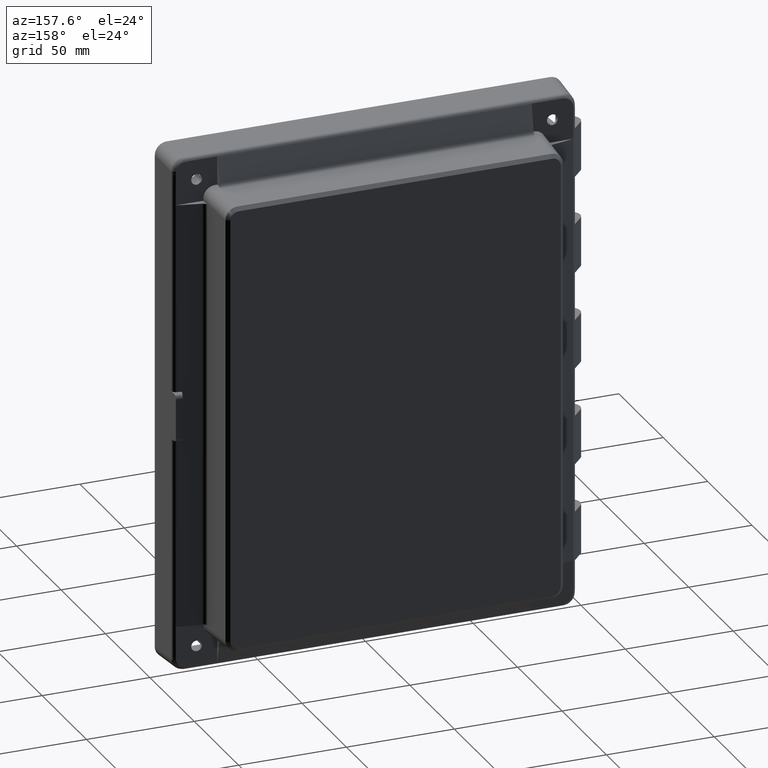
[diagram: clean part render]
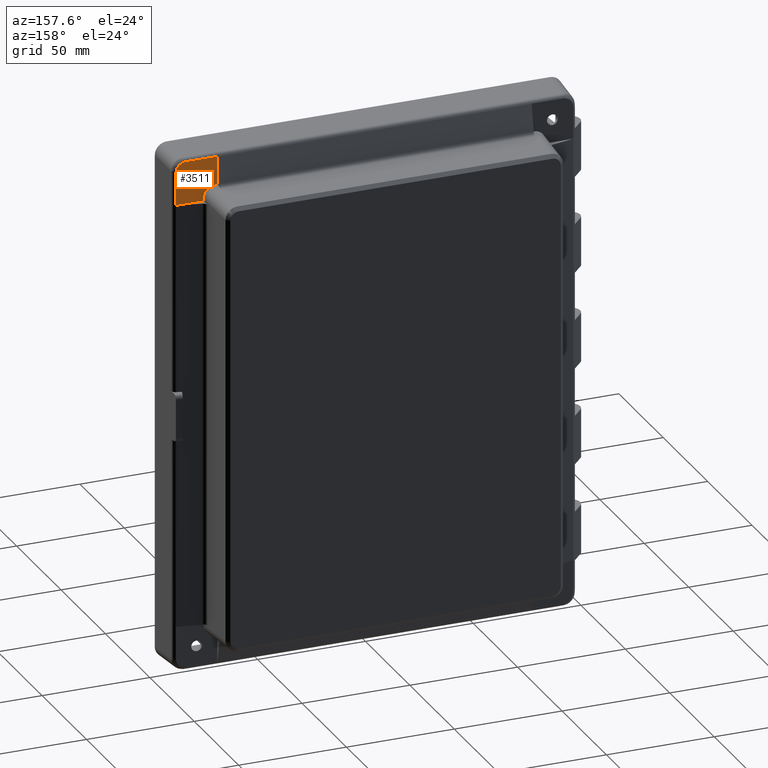
[diagram: same view with one face highlighted and labeled with its STEP entity id]
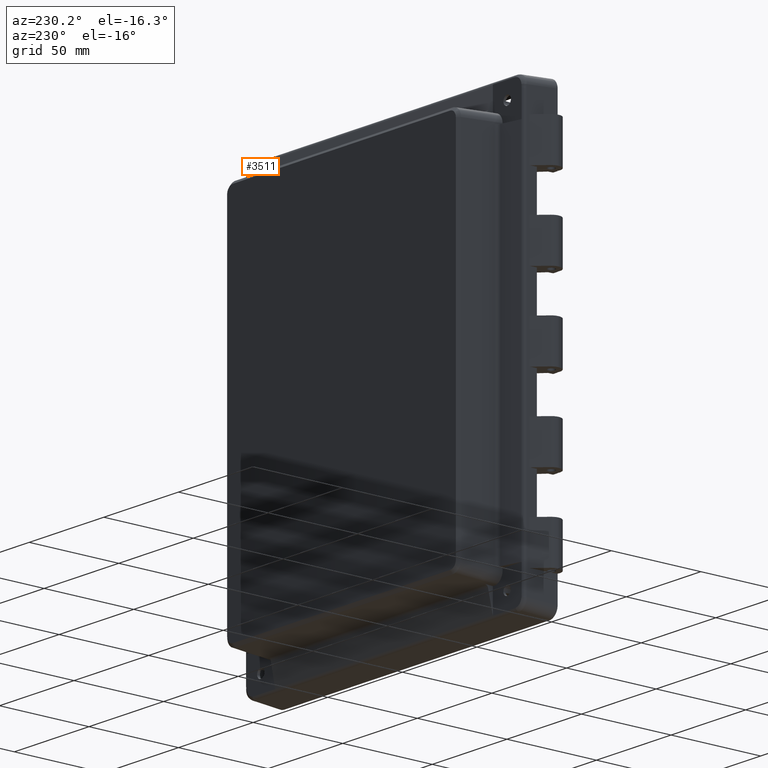
[diagram: same view with one face highlighted and labeled with its STEP entity id]
A machine part, auxiliary view. The second image highlights one B-rep face of the part: STEP entity #3511.
A second angle (auxiliary view) of the same face is appended — the face is thin or edge-on in the first view.
In plain terms, the highlighted planar face has unit normal (0, 1, 0).
Its self-contained STEP definition (entity closure, byte-faithful):
#19 = AXIS2_PLACEMENT_3D ( 'NONE', #389, #6987, #5044 ) ;
#147 = CARTESIAN_POINT ( 'NONE',  ( 91.17792925753433100, 10.26305314132456400, 116.9575850002400000 ) ) ;
#189 = CARTESIAN_POINT ( 'NONE',  ( 90.65763125663389100, 10.26305314132456400, 117.5129712022729600 ) ) ;
#200 = AXIS2_PLACEMENT_3D ( 'NONE', #6216, #6789, #6873 ) ;
#226 = ORIENTED_EDGE ( 'NONE', *, *, #573, .F. ) ;
#239 = CARTESIAN_POINT ( 'NONE',  ( 90.46072903492050400, 10.26305314132456600, 117.6754829822426700 ) ) ;
#255 = ORIENTED_EDGE ( 'NONE', *, *, #3357, .F. ) ;
#270 = EDGE_LOOP ( 'NONE', ( #4478, #3212, #226, #5603, #4025, #4510, #4440, #8291, #6733, #2239 ) ) ;
#389 = CARTESIAN_POINT ( 'NONE',  ( 80.77759780067911800, 10.26305314132456700, 108.1551621632934400 ) ) ;
#444 = EDGE_CURVE ( 'NONE', #7167, #2743, #2671, .T. ) ;
#460 = ORIENTED_EDGE ( 'NONE', *, *, #3816, .F. ) ;
#487 = CIRCLE ( 'NONE', #929, 0.2999999999999947200 ) ;
#508 = VERTEX_POINT ( 'NONE', #6700 ) ;
#573 = EDGE_CURVE ( 'NONE', #2435, #8001, #1056, .T. ) ;
#577 = FACE_BOUND ( 'NONE', #1226, .T. ) ;
#620 = AXIS2_PLACEMENT_3D ( 'NONE', #3177, #3852, #5871 ) ;
#878 = ORIENTED_EDGE ( 'NONE', *, *, #5359, .F. ) ;
#895 = CIRCLE ( 'NONE', #19, 0.2999999999999808400 ) ;
#911 = CARTESIAN_POINT ( 'NONE',  ( 90.04408250934285700, 10.26305314132456600, 117.9597556672970300 ) ) ;
#929 = AXIS2_PLACEMENT_3D ( 'NONE', #3565, #6242, #7442 ) ;
#946 = CARTESIAN_POINT ( 'NONE',  ( 92.18264067045092200, 10.26305314132456700, 98.93475897172263000 ) ) ;
#1056 = B_SPLINE_CURVE_WITH_KNOTS ( 'NONE', 3,
 ( #5440, #7428, #3485, #5501 ),
 .UNSPECIFIED., .F., .F.,
 ( 4, 4 ),
 ( 0.0000000000000000000, 0.001667450946668626700 ),
 .UNSPECIFIED. ) ;
#1200 = VECTOR ( 'NONE', #7460, 1000.000000000000000 ) ;
#1226 = EDGE_LOOP ( 'NONE', ( #878, #460, #2879, #1821, #4925, #255 ) ) ;
#1237 = VERTEX_POINT ( 'NONE', #1594 ) ;
#1406 = EDGE_CURVE ( 'NONE', #8270, #3006, #6795, .T. ) ;
#1416 = CIRCLE ( 'NONE', #620, 2.499999999999988500 ) ;
#1454 = CARTESIAN_POINT ( 'NONE',  ( 92.02752371964803000, 10.26305314132456900, 115.1362635281114300 ) ) ;
#1504 = CARTESIAN_POINT ( 'NONE',  ( 72.93475897172264400, 10.26305314132456700, 122.0847589717226200 ) ) ;
#1541 = CARTESIAN_POINT ( 'NONE',  ( 81.76090246257229000, 10.26305314132456700, 107.1170593762610500 ) ) ;
#1594 = CARTESIAN_POINT ( 'NONE',  ( 82.51926223426441700, 10.26305314132456700, 111.9992622342643200 ) ) ;
#1647 = DIRECTION ( 'NONE',  ( 4.022878491908001800E-014, -0.0000000000000000000, 1.000000000000000000 ) ) ;
#1717 = CARTESIAN_POINT ( 'NONE',  ( 87.57709328281251300, 10.26305314132456700, 118.6572041438203400 ) ) ;
#1821 = ORIENTED_EDGE ( 'NONE', *, *, #3232, .F. ) ;
#1973 = AXIS2_PLACEMENT_3D ( 'NONE', #4792, #2665, #5355 ) ;
#1989 = CARTESIAN_POINT ( 'NONE',  ( 73.96967373504921300, 10.26305314132456700, 99.96967373504912800 ) ) ;
#2047 = CARTESIAN_POINT ( 'NONE',  ( 80.54009810519018200, 10.26305314132456700, 107.9718757899792800 ) ) ;
#2112 = EDGE_CURVE ( 'NONE', #8001, #508, #3634, .T. ) ;
#2129 = VERTEX_POINT ( 'NONE', #2047 ) ;
#2191 = EDGE_CURVE ( 'NONE', #4637, #3006, #4916, .T. ) ;
#2239 = ORIENTED_EDGE ( 'NONE', *, *, #1406, .F. ) ;
#2256 = CARTESIAN_POINT ( 'NONE',  ( 89.82265645280091300, 10.26305314132456600, 118.0830192297788100 ) ) ;
#2343 = CARTESIAN_POINT ( 'NONE',  ( 79.46213617619940800, 10.26305314132456700, 99.96967373504919900 ) ) ;
#2435 = VERTEX_POINT ( 'NONE', #7857 ) ;
#2520 = DIRECTION ( 'NONE',  ( 0.0000000000000000000, 0.0000000000000000000, 1.000000000000000000 ) ) ;
#2614 = CARTESIAN_POINT ( 'NONE',  ( 72.93475897172264400, 10.26305314132456700, 118.6826406704508200 ) ) ;
#2665 = DIRECTION ( 'NONE',  ( -0.0000000000000000000, -1.000000000000000000, -0.0000000000000000000 ) ) ;
#2671 = CIRCLE ( 'NONE', #1973, 5.492462441150189000 ) ;
#2743 = VERTEX_POINT ( 'NONE', #5614 ) ;
#2849 = AXIS2_PLACEMENT_3D ( 'NONE', #1989, #4611, #5314 ) ;
#2879 = ORIENTED_EDGE ( 'NONE', *, *, #5617, .F. ) ;
#2952 = EDGE_CURVE ( 'NONE', #4091, #8237, #3717, .T. ) ;
#3006 = VERTEX_POINT ( 'NONE', #2614 ) ;
#3177 = CARTESIAN_POINT ( 'NONE',  ( 82.51926223426441700, 10.26305314132456700, 109.4992622342643400 ) ) ;
#3204 = EDGE_CURVE ( 'NONE', #4091, #2435, #7107, .T. ) ;
#3212 = ORIENTED_EDGE ( 'NONE', *, *, #2112, .F. ) ;
#3232 = EDGE_CURVE ( 'NONE', #2129, #1237, #3619, .T. ) ;
#3355 = CARTESIAN_POINT ( 'NONE',  ( 92.08950946164000600, 10.26305314132456600, 114.6299924083981200 ) ) ;
#3357 = EDGE_CURVE ( 'NONE', #5938, #7318, #7022, .T. ) ;
#3467 = CARTESIAN_POINT ( 'NONE',  ( 91.89798329728466800, 10.26305314132456700, 115.6221673674419500 ) ) ;
#3485 = CARTESIAN_POINT ( 'NONE',  ( 92.15720414382045100, 10.26305314132456700, 114.0770932828124000 ) ) ;
#3495 = FACE_OUTER_BOUND ( 'NONE', #270, .T. ) ;
#3511 = ADVANCED_FACE ( 'NONE', ( #577, #3495 ), #6662, .T. ) ;
#3565 = CARTESIAN_POINT ( 'NONE',  ( 81.85190563517538500, 10.26305314132456700, 107.4029237192214200 ) ) ;
#3599 = CARTESIAN_POINT ( 'NONE',  ( 72.93475897172264400, 10.26305314132456700, 105.4621361761993400 ) ) ;
#3619 = CIRCLE ( 'NONE', #200, 2.499999999999988500 ) ;
#3634 = B_SPLINE_CURVE_WITH_KNOTS ( 'NONE', 3,
 ( #7372, #1454, #3467, #8069, #4144, #147, #4034, #189, #239, #911, #2256, #6834, #6194, #8090 ),
 .UNSPECIFIED., .F., .F.,
 ( 4, 2, 2, 2, 2, 2, 4 ),
 ( 1.387778780781445500E-017, 0.001507838627077705400, 0.002261757940616532700, 0.003015677254155359500, 0.003769596567694186400, 0.004523515881233013300, 0.006031354508310705200 ),
 .UNSPECIFIED. ) ;
#3717 = LINE ( 'NONE', #8454, #5776 ) ;
#3816 = EDGE_CURVE ( 'NONE', #6894, #6943, #1416, .T. ) ;
#3818 = DIRECTION ( 'NONE',  ( 0.0000000000000000000, 1.000000000000000000, 0.0000000000000000000 ) ) ;
#3844 = CARTESIAN_POINT ( 'NONE',  ( 79.46213617619942200, 10.26305314132456700, 99.96967373504919900 ) ) ;
#3852 = DIRECTION ( 'NONE',  ( 0.0000000000000000000, 1.000000000000000000, 0.0000000000000000000 ) ) ;
#4025 = ORIENTED_EDGE ( 'NONE', *, *, #2952, .T. ) ;
#4034 = CARTESIAN_POINT ( 'NONE',  ( 91.01753453910670500, 10.26305314132456600, 117.1524494880284100 ) ) ;
#4091 = VERTEX_POINT ( 'NONE', #946 ) ;
#4098 = CARTESIAN_POINT ( 'NONE',  ( 82.51926223426441700, 10.26305314132456700, 106.9992622342643400 ) ) ;
#4144 = CARTESIAN_POINT ( 'NONE',  ( 91.46195803504281200, 10.26305314132456600, 116.5404059448425900 ) ) ;
#4233 = CARTESIAN_POINT ( 'NONE',  ( 72.93475897172264400, 10.26305314132456700, 105.4621361761993400 ) ) ;
#4300 = EDGE_CURVE ( 'NONE', #508, #8270, #4490, .T. ) ;
#4440 = ORIENTED_EDGE ( 'NONE', *, *, #444, .T. ) ;
#4456 = CARTESIAN_POINT ( 'NONE',  ( 86.46514429595926300, 10.26305314132456700, 118.6826406704508200 ) ) ;
#4478 = ORIENTED_EDGE ( 'NONE', *, *, #4300, .F. ) ;
#4490 = B_SPLINE_CURVE_WITH_KNOTS ( 'NONE', 3,
 ( #5744, #1717, #5720, #4456 ),
 .UNSPECIFIED., .F., .F.,
 ( 4, 4 ),
 ( 1.387778780781445700E-017, 0.001667450946668641500 ),
 .UNSPECIFIED. ) ;
#4510 = ORIENTED_EDGE ( 'NONE', *, *, #8269, .T. ) ;
#4515 = CARTESIAN_POINT ( 'NONE',  ( 80.60552486977377400, 10.26305314132456700, 107.9094165500067800 ) ) ;
#4593 = CARTESIAN_POINT ( 'NONE',  ( 94.00000000000009900, 10.26305314132456700, 118.6826406704508200 ) ) ;
#4611 = DIRECTION ( 'NONE',  ( 0.0000000000000000000, 1.000000000000000000, 0.0000000000000000000 ) ) ;
#4623 = EDGE_CURVE ( 'NONE', #2743, #4637, #6485, .T. ) ;
#4637 = VERTEX_POINT ( 'NONE', #3599 ) ;
#4792 = CARTESIAN_POINT ( 'NONE',  ( 73.96967373504921300, 10.26305314132456700, 99.96967373504912800 ) ) ;
#4823 = VECTOR ( 'NONE', #7797, 1000.000000000000000 ) ;
#4916 = LINE ( 'NONE', #1504, #6056 ) ;
#4925 = ORIENTED_EDGE ( 'NONE', *, *, #5464, .F. ) ;
#5044 = DIRECTION ( 'NONE',  ( 0.0000000000000000000, 0.0000000000000000000, 1.000000000000000000 ) ) ;
#5211 = CARTESIAN_POINT ( 'NONE',  ( 82.51926223426441700, 10.26305314132456700, 109.4992622342643400 ) ) ;
#5314 = DIRECTION ( 'NONE',  ( 0.0000000000000000000, -0.0000000000000000000, 1.000000000000000000 ) ) ;
#5355 = DIRECTION ( 'NONE',  ( 0.0000000000000000000, 0.0000000000000000000, 1.000000000000000000 ) ) ;
#5359 = EDGE_CURVE ( 'NONE', #6943, #5938, #487, .T. ) ;
#5371 = AXIS2_PLACEMENT_3D ( 'NONE', #5211, #3818, #2520 ) ;
#5440 = CARTESIAN_POINT ( 'NONE',  ( 92.18264067045093700, 10.26305314132456700, 112.9651442959591800 ) ) ;
#5464 = EDGE_CURVE ( 'NONE', #7318, #2129, #895, .T. ) ;
#5490 = DIRECTION ( 'NONE',  ( -1.000000000000000000, -0.0000000000000000000, -0.0000000000000000000 ) ) ;
#5501 = CARTESIAN_POINT ( 'NONE',  ( 92.08950946164000600, 10.26305314132456600, 114.6299924083981200 ) ) ;
#5603 = ORIENTED_EDGE ( 'NONE', *, *, #3204, .F. ) ;
#5614 = CARTESIAN_POINT ( 'NONE',  ( 73.96967373504921300, 10.26305314132456700, 105.4621361761993400 ) ) ;
#5617 = EDGE_CURVE ( 'NONE', #1237, #6894, #7919, .T. ) ;
#5720 = CARTESIAN_POINT ( 'NONE',  ( 87.02183024602128100, 10.26305314132456700, 118.6826406704508400 ) ) ;
#5744 = CARTESIAN_POINT ( 'NONE',  ( 88.12999240839820900, 10.26305314132456700, 118.5895094616398800 ) ) ;
#5761 = VECTOR ( 'NONE', #5490, 1000.000000000000000 ) ;
#5776 = VECTOR ( 'NONE', #5798, 1000.000000000000000 ) ;
#5798 = DIRECTION ( 'NONE',  ( -1.000000000000000000, -0.0000000000000000000, 3.339494128821101200E-015 ) ) ;
#5871 = DIRECTION ( 'NONE',  ( 0.0000000000000000000, 0.0000000000000000000, 1.000000000000000000 ) ) ;
#5938 = VERTEX_POINT ( 'NONE', #7479 ) ;
#6056 = VECTOR ( 'NONE', #6151, 1000.000000000000000 ) ;
#6151 = DIRECTION ( 'NONE',  ( -0.0000000000000000000, -0.0000000000000000000, 1.000000000000000000 ) ) ;
#6194 = CARTESIAN_POINT ( 'NONE',  ( 88.63656228072139200, 10.26305314132456600, 118.5274871416140000 ) ) ;
#6216 = CARTESIAN_POINT ( 'NONE',  ( 82.51926223426441700, 10.26305314132456700, 109.4992622342643400 ) ) ;
#6242 = DIRECTION ( 'NONE',  ( -0.0000000000000000000, 1.000000000000000000, -0.0000000000000000000 ) ) ;
#6485 = LINE ( 'NONE', #4233, #5761 ) ;
#6662 = PLANE ( 'NONE',  #2849 ) ;
#6665 = CARTESIAN_POINT ( 'NONE',  ( 80.60552486977377400, 10.26305314132456700, 107.9094165500067800 ) ) ;
#6700 = CARTESIAN_POINT ( 'NONE',  ( 88.12999240839820900, 10.26305314132456700, 118.5895094616398800 ) ) ;
#6733 = ORIENTED_EDGE ( 'NONE', *, *, #2191, .T. ) ;
#6789 = DIRECTION ( 'NONE',  ( 0.0000000000000000000, 1.000000000000000000, 0.0000000000000000000 ) ) ;
#6795 = LINE ( 'NONE', #4593, #4823 ) ;
#6834 = CARTESIAN_POINT ( 'NONE',  ( 89.12433071705943600, 10.26305314132456900, 118.3977276271034900 ) ) ;
#6873 = DIRECTION ( 'NONE',  ( 0.0000000000000000000, 0.0000000000000000000, 1.000000000000000000 ) ) ;
#6894 = VERTEX_POINT ( 'NONE', #4098 ) ;
#6925 = VECTOR ( 'NONE', #7815, 1000.000000000000200 ) ;
#6938 = VECTOR ( 'NONE', #1647, 1000.000000000000000 ) ;
#6943 = VERTEX_POINT ( 'NONE', #1541 ) ;
#6970 = CARTESIAN_POINT ( 'NONE',  ( 86.46514429595926300, 10.26305314132456700, 118.6826406704508200 ) ) ;
#6987 = DIRECTION ( 'NONE',  ( 0.0000000000000000000, 1.000000000000000000, 0.0000000000000000000 ) ) ;
#7022 = LINE ( 'NONE', #4515, #6925 ) ;
#7107 = LINE ( 'NONE', #8210, #1200 ) ;
#7167 = VERTEX_POINT ( 'NONE', #3844 ) ;
#7318 = VERTEX_POINT ( 'NONE', #6665 ) ;
#7372 = CARTESIAN_POINT ( 'NONE',  ( 92.08950946164000600, 10.26305314132456600, 114.6299924083981200 ) ) ;
#7428 = CARTESIAN_POINT ( 'NONE',  ( 92.18264067045093700, 10.26305314132456700, 113.5218302460212000 ) ) ;
#7442 = DIRECTION ( 'NONE',  ( 0.0000000000000000000, 0.0000000000000000000, -1.000000000000000000 ) ) ;
#7460 = DIRECTION ( 'NONE',  ( 0.0000000000000000000, -0.0000000000000000000, 1.000000000000000000 ) ) ;
#7479 = CARTESIAN_POINT ( 'NONE',  ( 81.67983270427002700, 10.26305314132456700, 107.1571781059347300 ) ) ;
#7625 = CARTESIAN_POINT ( 'NONE',  ( 79.46213617619936500, 10.26305314132456700, 98.93475897172267300 ) ) ;
#7797 = DIRECTION ( 'NONE',  ( -1.000000000000000000, 0.0000000000000000000, 0.0000000000000000000 ) ) ;
#7815 = DIRECTION ( 'NONE',  ( -0.8191520442889880200, -0.0000000000000000000, 0.5735764363510513800 ) ) ;
#7857 = CARTESIAN_POINT ( 'NONE',  ( 92.18264067045093700, 10.26305314132456700, 112.9651442959591800 ) ) ;
#7919 = CIRCLE ( 'NONE', #5371, 2.499999999999988500 ) ;
#8001 = VERTEX_POINT ( 'NONE', #3355 ) ;
#8069 = CARTESIAN_POINT ( 'NONE',  ( 91.58650817779161500, 10.26305314132456700, 116.3156988243600800 ) ) ;
#8090 = CARTESIAN_POINT ( 'NONE',  ( 88.12999240839820900, 10.26305314132456700, 118.5895094616398800 ) ) ;
#8210 = CARTESIAN_POINT ( 'NONE',  ( 92.18264067045092200, 10.26305314132456700, 120.5000000000000000 ) ) ;
#8237 = VERTEX_POINT ( 'NONE', #7625 ) ;
#8269 = EDGE_CURVE ( 'NONE', #8237, #7167, #8347, .T. ) ;
#8270 = VERTEX_POINT ( 'NONE', #6970 ) ;
#8291 = ORIENTED_EDGE ( 'NONE', *, *, #4623, .T. ) ;
#8347 = LINE ( 'NONE', #2343, #6938 ) ;
#8454 = CARTESIAN_POINT ( 'NONE',  ( 79.46213617619936500, 10.26305314132456700, 98.93475897172267300 ) ) ;